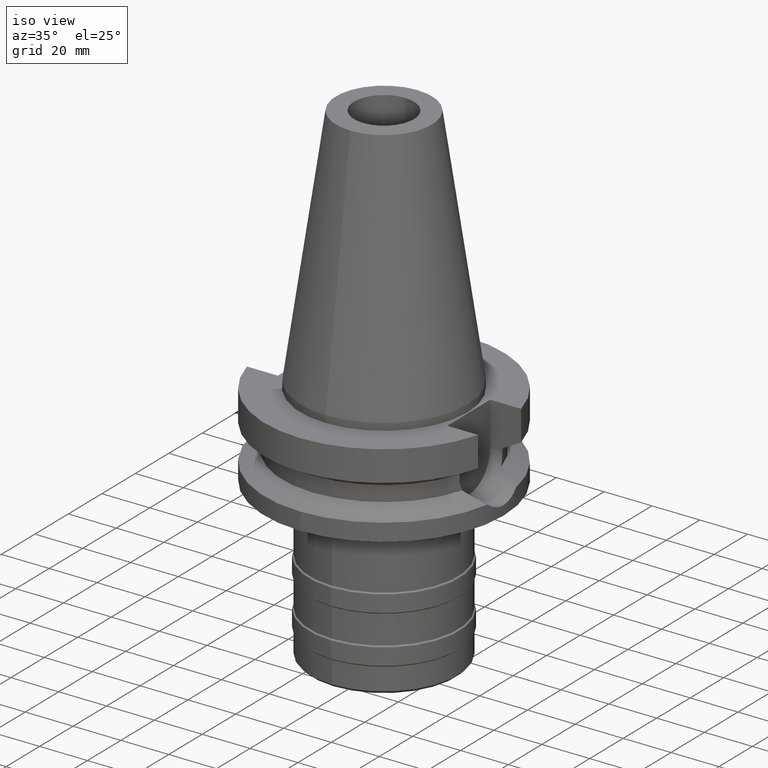
[diagram: clean part render]
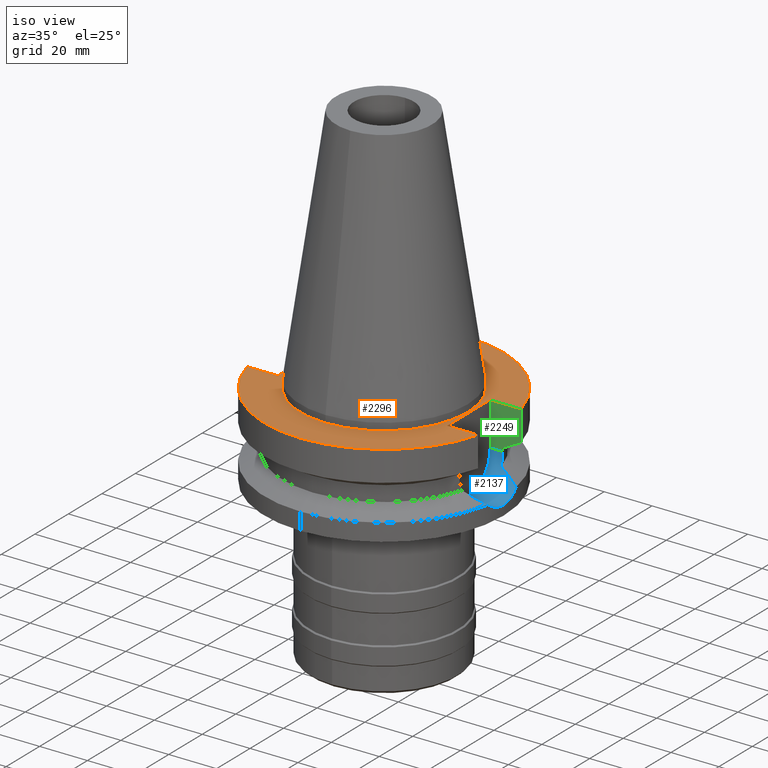
[diagram: same view with three faces highlighted in distinct colors, each labeled with its STEP entity id]
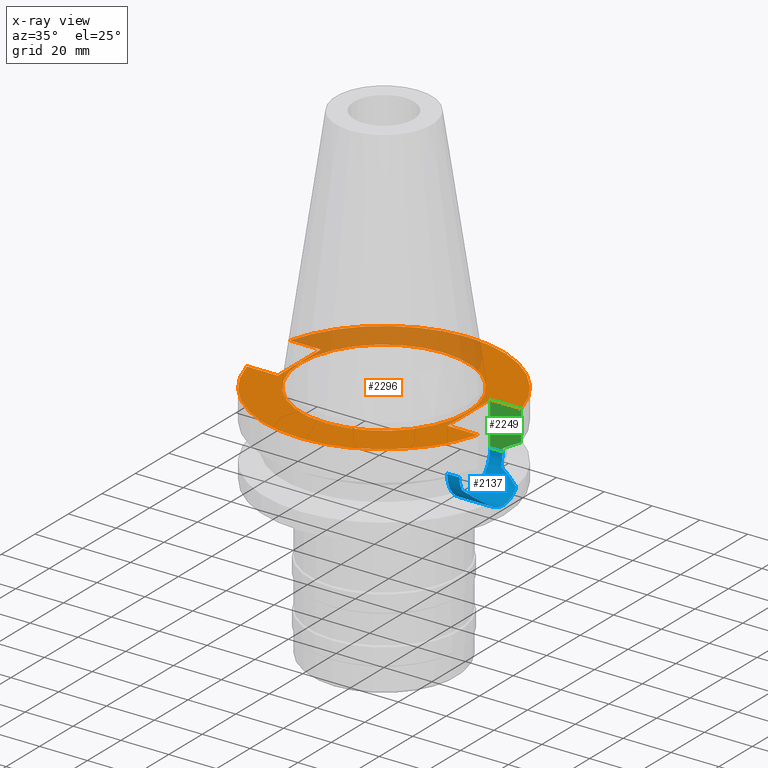
[diagram: x-ray of the same camera — body ghosted, the three highlighted faces saturated]
A machine part, iso view with three faces highlighted in distinct colors.
The next image is the same camera in x-ray (body ghosted, the three faces saturated) — at least one of them is partly hidden behind the body in this view.
Their STEP definitions:

[orange] entity #2296 — the highlighted planar face has unit normal (0, 0, -1).
#888=DIRECTION('',(1.E0,0.E0,0.E0));
#889=VECTOR('',#888,1.292057015392E1);
#890=CARTESIAN_POINT('',(3.54E1,1.285E1,-3.E0));
#891=LINE('',#890,#889);
#935=DIRECTION('',(0.E0,1.E0,0.E0));
#936=VECTOR('',#935,2.57E1);
#937=CARTESIAN_POINT('',(-3.54E1,-1.285E1,-3.E0));
#938=LINE('',#937,#936);
#942=DIRECTION('',(-1.E0,0.E0,0.E0));
#943=VECTOR('',#942,1.292057015392E1);
#944=CARTESIAN_POINT('',(-3.54E1,1.285E1,-3.E0));
#945=LINE('',#944,#943);
#949=CARTESIAN_POINT('',(0.E0,2.597965719711E-14,-3.E0));
#950=DIRECTION('',(0.E0,0.E0,-1.E0));
#951=DIRECTION('',(-9.664114030784E-1,2.57E-1,0.E0));
#952=AXIS2_PLACEMENT_3D('',#949,#950,#951);
#957=CARTESIAN_POINT('',(0.E0,2.597965719711E-14,-3.E0));
#958=DIRECTION('',(0.E0,0.E0,-1.E0));
#959=DIRECTION('',(0.E0,1.E0,0.E0));
#960=AXIS2_PLACEMENT_3D('',#957,#958,#959);
#965=DIRECTION('',(0.E0,-1.E0,0.E0));
#966=VECTOR('',#965,2.57E1);
#967=CARTESIAN_POINT('',(3.54E1,1.285E1,-3.E0));
#968=LINE('',#967,#966);
#972=DIRECTION('',(1.E0,0.E0,0.E0));
#973=VECTOR('',#972,1.292057015392E1);
#974=CARTESIAN_POINT('',(3.54E1,-1.285E1,-3.E0));
#975=LINE('',#974,#973);
#979=CARTESIAN_POINT('',(0.E0,2.597965719711E-14,-3.E0));
#980=DIRECTION('',(0.E0,0.E0,-1.E0));
#981=DIRECTION('',(9.664114030784E-1,-2.57E-1,0.E0));
#982=AXIS2_PLACEMENT_3D('',#979,#980,#981);
#987=CARTESIAN_POINT('',(0.E0,2.597965719711E-14,-3.E0));
#988=DIRECTION('',(0.E0,0.E0,-1.E0));
#989=DIRECTION('',(0.E0,-1.E0,0.E0));
#990=AXIS2_PLACEMENT_3D('',#987,#988,#989);
#995=CARTESIAN_POINT('',(0.E0,2.597965719711E-14,-3.E0));
#996=DIRECTION('',(0.E0,0.E0,1.E0));
#997=DIRECTION('',(0.E0,-1.E0,0.E0));
#998=AXIS2_PLACEMENT_3D('',#995,#996,#997);
#1003=CARTESIAN_POINT('',(0.E0,2.597965719711E-14,-3.E0));
#1004=DIRECTION('',(0.E0,0.E0,1.E0));
#1005=DIRECTION('',(0.E0,1.E0,0.E0));
#1006=AXIS2_PLACEMENT_3D('',#1003,#1004,#1005);
#1041=DIRECTION('',(-1.E0,0.E0,0.E0));
#1042=VECTOR('',#1041,1.292057015392E1);
#1043=CARTESIAN_POINT('',(-3.54E1,-1.285E1,-3.E0));
#1044=LINE('',#1043,#1042);
#1431=CARTESIAN_POINT('',(-3.54E1,-1.285E1,-3.E0));
#1432=VERTEX_POINT('',#1431);
#1433=CARTESIAN_POINT('',(-4.832057015392E1,-1.285E1,-3.E0));
#1434=VERTEX_POINT('',#1433);
#1437=CARTESIAN_POINT('',(-3.54E1,1.285E1,-3.E0));
#1438=VERTEX_POINT('',#1437);
#1439=CARTESIAN_POINT('',(-4.832057015392E1,1.285E1,-3.E0));
#1440=VERTEX_POINT('',#1439);
#1441=CARTESIAN_POINT('',(-1.065814103640E-14,5.E1,-3.E0));
#1442=CARTESIAN_POINT('',(4.832057015392E1,1.285E1,-3.E0));
#1443=VERTEX_POINT('',#1441);
#1444=VERTEX_POINT('',#1442);
#1445=CARTESIAN_POINT('',(3.54E1,1.285E1,-3.E0));
#1446=VERTEX_POINT('',#1445);
#1447=CARTESIAN_POINT('',(3.54E1,-1.285E1,-3.E0));
#1448=VERTEX_POINT('',#1447);
#1449=CARTESIAN_POINT('',(4.832057015392E1,-1.285E1,-3.E0));
#1450=VERTEX_POINT('',#1449);
#1451=CARTESIAN_POINT('',(1.065814103640E-14,-5.E1,-3.E0));
#1452=VERTEX_POINT('',#1451);
#1453=CARTESIAN_POINT('',(0.E0,-3.4925E1,-3.E0));
#1454=CARTESIAN_POINT('',(0.E0,3.4925E1,-3.E0));
#1455=VERTEX_POINT('',#1453);
#1456=VERTEX_POINT('',#1454);
#2265=CARTESIAN_POINT('',(0.E0,1.187907395173E-14,-3.E0));
#2266=DIRECTION('',(0.E0,0.E0,-1.E0));
#2267=DIRECTION('',(0.E0,-1.E0,0.E0));
#2268=AXIS2_PLACEMENT_3D('',#2265,#2266,#2267);
#2269=PLANE('',#2268);
#2271=ORIENTED_EDGE('',*,*,#2270,.T.);
#2273=ORIENTED_EDGE('',*,*,#2272,.T.);
#2275=ORIENTED_EDGE('',*,*,#2274,.T.);
#2277=ORIENTED_EDGE('',*,*,#2276,.T.);
#2278=ORIENTED_EDGE('',*,*,#2241,.F.);
#2279=ORIENTED_EDGE('',*,*,#2255,.T.);
#2281=ORIENTED_EDGE('',*,*,#2280,.T.);
#2283=ORIENTED_EDGE('',*,*,#2282,.T.);
#2285=ORIENTED_EDGE('',*,*,#2284,.T.);
#2287=ORIENTED_EDGE('',*,*,#2286,.F.);
#2288=EDGE_LOOP('',(#2271,#2273,#2275,#2277,#2278,#2279,#2281,#2283,#2285,
#2287));
#2289=FACE_OUTER_BOUND('',#2288,.F.);
#2291=ORIENTED_EDGE('',*,*,#2290,.T.);
#2293=ORIENTED_EDGE('',*,*,#2292,.T.);
#2294=EDGE_LOOP('',(#2291,#2293));
#2295=FACE_BOUND('',#2294,.F.);
#953=CIRCLE('',#952,5.E1);
#961=CIRCLE('',#960,5.E1);
#983=CIRCLE('',#982,5.E1);
#991=CIRCLE('',#990,5.E1);
#999=CIRCLE('',#998,3.4925E1);
#1007=CIRCLE('',#1006,3.4925E1);
#2241=EDGE_CURVE('',#1446,#1444,#891,.T.);
#2255=EDGE_CURVE('',#1446,#1448,#968,.T.);
#2270=EDGE_CURVE('',#1432,#1438,#938,.T.);
#2272=EDGE_CURVE('',#1438,#1440,#945,.T.);
#2274=EDGE_CURVE('',#1440,#1443,#953,.T.);
#2276=EDGE_CURVE('',#1443,#1444,#961,.T.);
#2280=EDGE_CURVE('',#1448,#1450,#975,.T.);
#2282=EDGE_CURVE('',#1450,#1452,#983,.T.);
#2284=EDGE_CURVE('',#1452,#1434,#991,.T.);
#2286=EDGE_CURVE('',#1432,#1434,#1044,.T.);
#2290=EDGE_CURVE('',#1455,#1456,#999,.T.);
#2292=EDGE_CURVE('',#1456,#1455,#1007,.T.);
#2296=ADVANCED_FACE('',(#2289,#2295),#2269,.F.);

[blue] entity #2137 — the highlighted cylindrical surface (partial cylindrical patch) has radius 12.85 mm, axis along (1, 0, 0).
#670=CARTESIAN_POINT('',(4.926250064874E1,-8.556052234130E0,-3.073730776427E1));
#671=CARTESIAN_POINT('',(4.936649611958E1,-7.957285792575E0,-3.127166809524E1));
#672=CARTESIAN_POINT('',(4.956428496855E1,-6.687832623324E0,-3.220416769685E1));
#673=CARTESIAN_POINT('',(4.980480412100E1,-4.595876696259E0,-3.322690243424E1));
#674=CARTESIAN_POINT('',(4.996455573366E1,-2.307453981209E0,-3.386325285715E1));
#675=CARTESIAN_POINT('',(5.E1,-7.763522324051E-1,-3.4E1));
#676=CARTESIAN_POINT('',(5.E1,1.758225409536E-14,-3.4E1));
#681=CARTESIAN_POINT('',(5.E1,1.758225409536E-14,-3.4E1));
#682=CARTESIAN_POINT('',(5.E1,7.764873758773E-1,-3.4E1));
#683=CARTESIAN_POINT('',(4.996454298092E1,2.307787695179E0,-3.386320330492E1));
#684=CARTESIAN_POINT('',(4.980476725342E1,4.596271102306E0,-3.322675214137E1));
#685=CARTESIAN_POINT('',(4.956424417380E1,6.688114634514E0,-3.220398525578E1));
#686=CARTESIAN_POINT('',(4.936647870431E1,7.957386063112E0,-3.127157861027E1));
#687=CARTESIAN_POINT('',(4.926250064874E1,8.556052234130E0,-3.073730776427E1));
#699=DIRECTION('',(-1.E0,-3.510427359435E-14,0.E0));
#700=VECTOR('',#699,5.110831884819E0);
#701=CARTESIAN_POINT('',(4.051083188482E1,-1.285E1,-2.115E1));
#702=LINE('',#701,#700);
#706=DIRECTION('',(1.E0,-3.336643826790E-14,0.E0));
#707=VECTOR('',#706,5.110831884819E0);
#708=CARTESIAN_POINT('',(3.54E1,1.285E1,-2.115E1));
#709=LINE('',#708,#707);
#739=CARTESIAN_POINT('',(4.085052569294E1,-1.172538061688E1,-2.640718074535E1));
#740=CARTESIAN_POINT('',(4.174594715733E1,-1.151743828832E1,-2.687096600723E1));
#741=CARTESIAN_POINT('',(4.343721622334E1,-1.105946298627E1,-2.774476655674E1));
#742=CARTESIAN_POINT('',(4.566234912810E1,-1.028616050380E1,-2.889040843776E1));
#743=CARTESIAN_POINT('',(4.760808457876E1,-9.448875364254E0,-2.988960396930E1));
#744=CARTESIAN_POINT('',(4.873941709980E1,-8.856232071399E0,-3.046941667008E1));
#745=CARTESIAN_POINT('',(4.926250064874E1,-8.556052234130E0,-3.073730776427E1));
#828=CARTESIAN_POINT('',(4.926250064874E1,8.556052234130E0,-3.073730776427E1));
#829=CARTESIAN_POINT('',(4.845255497560E1,9.020852476566E0,-3.032250360334E1));
#830=CARTESIAN_POINT('',(4.673981446136E1,9.869581944370E0,-2.944434795393E1));
#831=CARTESIAN_POINT('',(4.392792068869E1,1.092154733257E1,-2.799810130894E1));
#832=CARTESIAN_POINT('',(4.189995098348E1,1.148167422024E1,-2.695073258384E1));
#833=CARTESIAN_POINT('',(4.085052569294E1,1.172538061688E1,-2.640718074535E1));
#864=CARTESIAN_POINT('',(4.085052569294E1,1.172538061688E1,-2.640718074535E1));
#865=CARTESIAN_POINT('',(4.077854327115E1,1.197616307477E1,-2.584784677658E1));
#866=CARTESIAN_POINT('',(4.065472271207E1,1.239073162697E1,-2.471136879753E1));
#867=CARTESIAN_POINT('',(4.053737510034E1,1.276678357057E1,-2.294120226876E1));
#868=CARTESIAN_POINT('',(4.051083188482E1,1.285E1,-2.175065147887E1));
#869=CARTESIAN_POINT('',(4.051083188482E1,1.285E1,-2.115E1));
#912=CARTESIAN_POINT('',(3.54E1,0.E0,-2.115E1));
#913=DIRECTION('',(-1.E0,0.E0,0.E0));
#914=DIRECTION('',(0.E0,1.E0,0.E0));
#915=AXIS2_PLACEMENT_3D('',#912,#913,#914);
#920=CARTESIAN_POINT('',(3.54E1,0.E0,-2.115E1));
#921=DIRECTION('',(-1.E0,0.E0,0.E0));
#922=DIRECTION('',(0.E0,0.E0,-1.E0));
#923=AXIS2_PLACEMENT_3D('',#920,#921,#922);
#1082=CARTESIAN_POINT('',(4.051083188482E1,-1.285E1,-2.115E1));
#1083=CARTESIAN_POINT('',(4.051083188482E1,-1.285E1,-2.175069940276E1));
#1084=CARTESIAN_POINT('',(4.053737939728E1,-1.276677010615E1,
-2.294131373627E1));
#1085=CARTESIAN_POINT('',(4.065473259263E1,-1.239069934061E1,
-2.471147259509E1));
#1086=CARTESIAN_POINT('',(4.077854870214E1,-1.197614415352E1,
-2.584788897769E1));
#1087=CARTESIAN_POINT('',(4.085052569294E1,-1.172538061688E1,
-2.640718074535E1));
#1384=VERTEX_POINT('',#681);
#1385=VERTEX_POINT('',#687);
#1386=VERTEX_POINT('',#670);
#1391=VERTEX_POINT('',#739);
#1392=VERTEX_POINT('',#1082);
#1393=CARTESIAN_POINT('',(3.54E1,-1.285E1,-2.115E1));
#1394=VERTEX_POINT('',#1393);
#1395=CARTESIAN_POINT('',(3.54E1,0.E0,-3.4E1));
#1396=VERTEX_POINT('',#1395);
#1397=CARTESIAN_POINT('',(3.54E1,1.285E1,-2.115E1));
#1398=VERTEX_POINT('',#1397);
#1399=CARTESIAN_POINT('',(4.051083188482E1,1.285E1,-2.115E1));
#1400=VERTEX_POINT('',#1399);
#1401=VERTEX_POINT('',#864);
#2112=CARTESIAN_POINT('',(3.54E1,0.E0,-2.115E1));
#2113=DIRECTION('',(1.E0,0.E0,0.E0));
#2114=DIRECTION('',(0.E0,0.E0,-1.E0));
#2115=AXIS2_PLACEMENT_3D('',#2112,#2113,#2114);
#2116=CYLINDRICAL_SURFACE('',#2115,1.285E1);
#2117=ORIENTED_EDGE('',*,*,#2098,.F.);
#2118=ORIENTED_EDGE('',*,*,#2096,.F.);
#2120=ORIENTED_EDGE('',*,*,#2119,.F.);
#2122=ORIENTED_EDGE('',*,*,#2121,.F.);
#2124=ORIENTED_EDGE('',*,*,#2123,.T.);
#2126=ORIENTED_EDGE('',*,*,#2125,.F.);
#2128=ORIENTED_EDGE('',*,*,#2127,.F.);
#2130=ORIENTED_EDGE('',*,*,#2129,.T.);
#2132=ORIENTED_EDGE('',*,*,#2131,.F.);
#2134=ORIENTED_EDGE('',*,*,#2133,.F.);
#2135=EDGE_LOOP('',(#2117,#2118,#2120,#2122,#2124,#2126,#2128,#2130,#2132,
#2134));
#2136=FACE_OUTER_BOUND('',#2135,.F.);
#677=B_SPLINE_CURVE_WITH_KNOTS('',3,(#670,#671,#672,#673,#674,#675,#676),
.UNSPECIFIED.,.F.,.F.,(4,1,1,1,4),(0.E0,2.5E-1,5.E-1,7.5E-1,1.E0),
.UNSPECIFIED.);
#688=B_SPLINE_CURVE_WITH_KNOTS('',3,(#681,#682,#683,#684,#685,#686,#687),
.UNSPECIFIED.,.F.,.F.,(4,1,1,1,4),(0.E0,2.5E-1,5.E-1,7.5E-1,1.E0),
.UNSPECIFIED.);
#746=B_SPLINE_CURVE_WITH_KNOTS('',3,(#739,#740,#741,#742,#743,#744,#745),
.UNSPECIFIED.,.F.,.F.,(4,1,1,1,4),(0.E0,2.5E-1,5.E-1,7.5E-1,1.E0),
.UNSPECIFIED.);
#834=B_SPLINE_CURVE_WITH_KNOTS('',3,(#828,#829,#830,#831,#832,#833),
.UNSPECIFIED.,.F.,.F.,(4,1,1,4),(0.E0,3.333333333333E-1,6.666666666667E-1,1.E0),
.UNSPECIFIED.);
#870=B_SPLINE_CURVE_WITH_KNOTS('',3,(#864,#865,#866,#867,#868,#869),
.UNSPECIFIED.,.F.,.F.,(4,1,1,4),(0.E0,3.333333333333E-1,6.666666666667E-1,1.E0),
.UNSPECIFIED.);
#916=CIRCLE('',#915,1.285E1);
#924=CIRCLE('',#923,1.285E1);
#1088=B_SPLINE_CURVE_WITH_KNOTS('',3,(#1082,#1083,#1084,#1085,#1086,#1087),
.UNSPECIFIED.,.F.,.F.,(4,1,1,4),(0.E0,3.333333333333E-1,6.666666666667E-1,1.E0),
.UNSPECIFIED.);
#2096=EDGE_CURVE('',#1386,#1384,#677,.T.);
#2098=EDGE_CURVE('',#1384,#1385,#688,.T.);
#2119=EDGE_CURVE('',#1391,#1386,#746,.T.);
#2121=EDGE_CURVE('',#1392,#1391,#1088,.T.);
#2123=EDGE_CURVE('',#1392,#1394,#702,.T.);
#2125=EDGE_CURVE('',#1396,#1394,#924,.T.);
#2127=EDGE_CURVE('',#1398,#1396,#916,.T.);
#2129=EDGE_CURVE('',#1398,#1400,#709,.T.);
#2131=EDGE_CURVE('',#1401,#1400,#870,.T.);
#2133=EDGE_CURVE('',#1385,#1401,#834,.T.);
#2137=ADVANCED_FACE('',(#2136),#2116,.F.);

[green] entity #2249 — the highlighted planar face has unit normal (0, 1, 0).
#706=DIRECTION('',(1.E0,-3.336643826790E-14,0.E0));
#707=VECTOR('',#706,5.110831884819E0);
#708=CARTESIAN_POINT('',(3.54E1,1.285E1,-2.115E1));
#709=LINE('',#708,#707);
#874=DIRECTION('',(9.475564683954E-7,-2.987263291789E-6,9.999999999951E-1));
#875=VECTOR('',#874,1.157154217395E0);
#876=CARTESIAN_POINT('',(4.051083188482E1,1.285E1,-2.115E1));
#877=LINE('',#876,#875);
#888=DIRECTION('',(1.E0,0.E0,0.E0));
#889=VECTOR('',#888,1.292057015392E1);
#890=CARTESIAN_POINT('',(3.54E1,1.285E1,-3.E0));
#891=LINE('',#890,#889);
#895=CARTESIAN_POINT('',(4.832056912902E1,1.285000385398E1,-1.566265771207E1));
#896=CARTESIAN_POINT('',(4.745408731276E1,1.285000385398E1,-1.614611804178E1));
#897=CARTESIAN_POINT('',(4.572064983851E1,1.284999774058E1,-1.711204772878E1));
#898=CARTESIAN_POINT('',(4.311729575028E1,1.285000212700E1,-1.855526389314E1));
#899=CARTESIAN_POINT('',(4.138011683082E1,1.284999654328E1,-1.951445450768E1));
#900=CARTESIAN_POINT('',(4.051083298129E1,1.284999654328E1,-1.999284578261E1));
#905=DIRECTION('',(0.E0,0.E0,-1.E0));
#906=VECTOR('',#905,1.815E1);
#907=CARTESIAN_POINT('',(3.54E1,1.285E1,-3.E0));
#908=LINE('',#907,#906);
#1197=DIRECTION('',(8.093872096171E-8,-3.043581779524E-7,1.E0));
#1198=VECTOR('',#1197,1.266265771207E1);
#1199=CARTESIAN_POINT('',(4.832056912902E1,1.285000385398E1,-1.566265771207E1));
#1200=LINE('',#1199,#1198);
#1397=CARTESIAN_POINT('',(3.54E1,1.285E1,-2.115E1));
#1398=VERTEX_POINT('',#1397);
#1399=CARTESIAN_POINT('',(4.051083188482E1,1.285E1,-2.115E1));
#1400=VERTEX_POINT('',#1399);
#1425=CARTESIAN_POINT('',(4.051083298129E1,1.284999654328E1,-1.999284578261E1));
#1426=VERTEX_POINT('',#1425);
#1442=CARTESIAN_POINT('',(4.832057015392E1,1.285E1,-3.E0));
#1444=VERTEX_POINT('',#1442);
#1445=CARTESIAN_POINT('',(3.54E1,1.285E1,-3.E0));
#1446=VERTEX_POINT('',#1445);
#1470=VERTEX_POINT('',#895);
#2232=CARTESIAN_POINT('',(3.54E1,1.285E1,-2.115E1));
#2233=DIRECTION('',(0.E0,1.E0,0.E0));
#2234=DIRECTION('',(0.E0,0.E0,1.E0));
#2235=AXIS2_PLACEMENT_3D('',#2232,#2233,#2234);
#2236=PLANE('',#2235);
#2237=ORIENTED_EDGE('',*,*,#2221,.F.);
#2238=ORIENTED_EDGE('',*,*,#2129,.F.);
#2240=ORIENTED_EDGE('',*,*,#2239,.F.);
#2242=ORIENTED_EDGE('',*,*,#2241,.T.);
#2244=ORIENTED_EDGE('',*,*,#2243,.F.);
#2246=ORIENTED_EDGE('',*,*,#2245,.T.);
#2247=EDGE_LOOP('',(#2237,#2238,#2240,#2242,#2244,#2246));
#2248=FACE_OUTER_BOUND('',#2247,.F.);
#901=B_SPLINE_CURVE_WITH_KNOTS('',3,(#895,#896,#897,#898,#899,#900),
.UNSPECIFIED.,.F.,.F.,(4,1,1,4),(0.E0,3.333333333333E-1,6.666666666667E-1,1.E0),
.UNSPECIFIED.);
#2129=EDGE_CURVE('',#1398,#1400,#709,.T.);
#2221=EDGE_CURVE('',#1400,#1426,#877,.T.);
#2239=EDGE_CURVE('',#1446,#1398,#908,.T.);
#2241=EDGE_CURVE('',#1446,#1444,#891,.T.);
#2243=EDGE_CURVE('',#1470,#1444,#1200,.T.);
#2245=EDGE_CURVE('',#1470,#1426,#901,.T.);
#2249=ADVANCED_FACE('',(#2248),#2236,.F.);